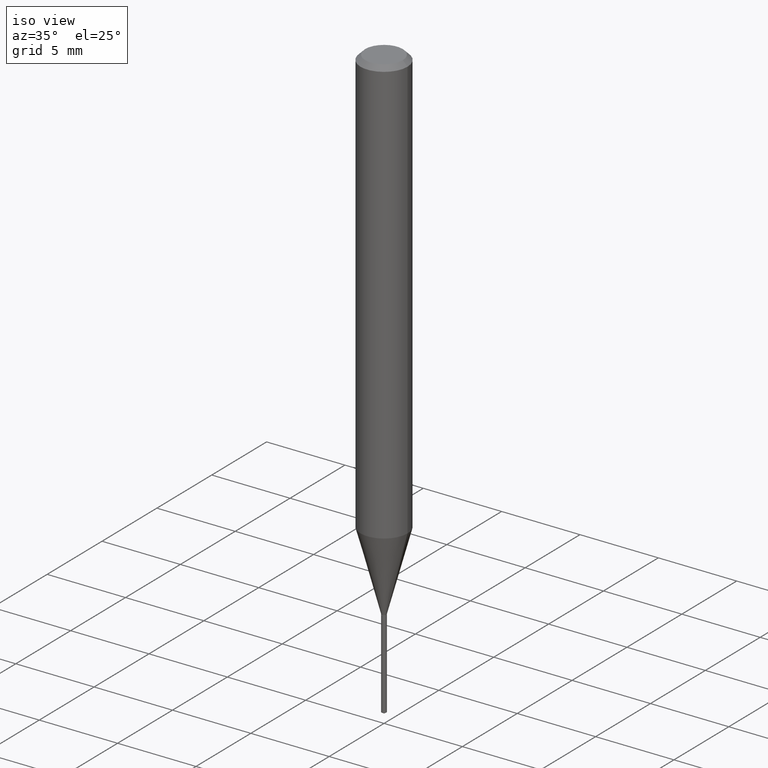
[diagram: clean part render]
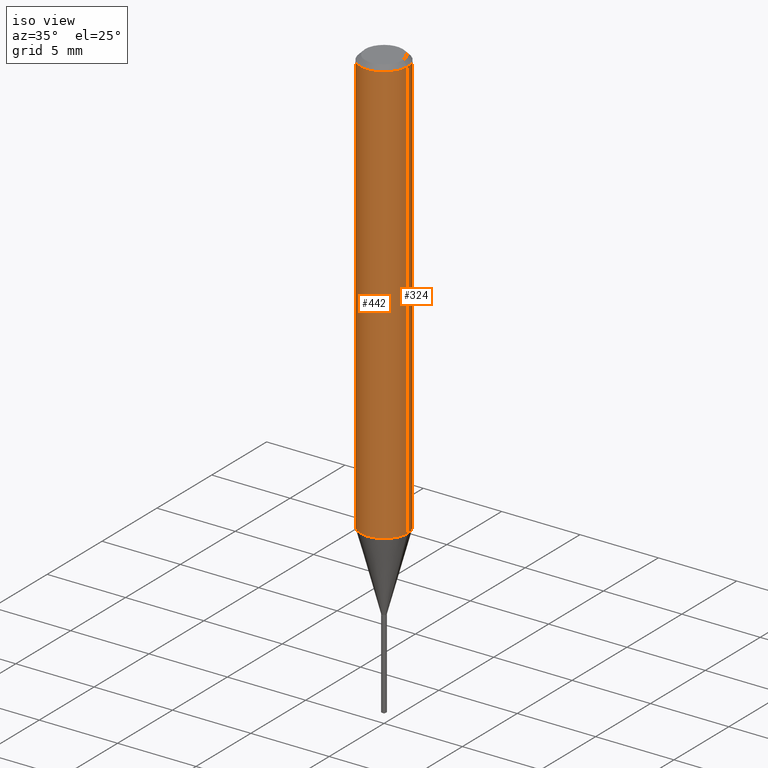
[diagram: same view with one multi-face feature highlighted, each face labeled with its STEP entity id]
A machine part, iso view. The highlighted faces form ONE feature: a constant-radius fillet chain: 2 tangent blend faces with common blend radius 1.4999 mm. The faces share edges in the B-rep.
Their STEP definitions:
[1] entity #324 (Cylinder):
#17 = EDGE_CURVE ( 'NONE', #148, #287, #239, .T. ) ;
#31 = CARTESIAN_POINT ( 'NONE',  ( 2.620421311750143284E-29, -3.741267149571589236E-15, -1.071541499577713941 ) ) ;
#44 = AXIS2_PLACEMENT_3D ( 'NONE', #386, #240, #390 ) ;
#57 = FACE_OUTER_BOUND ( 'NONE', #365, .T. ) ;
#63 = CARTESIAN_POINT ( 'NONE',  ( -0.05904999999999999832, -1.471675286625323003E-15, -0.01181000000000007044 ) ) ;
#84 = VECTOR ( 'NONE', #197, 39.37007874015748143 ) ;
#95 = CYLINDRICAL_SURFACE ( 'NONE', #401, 0.05905000000000006771 ) ;
#103 = ORIENTED_EDGE ( 'NONE', *, *, #471, .F. ) ;
#128 = CIRCLE ( 'NONE', #44, 0.05904999999999999832 ) ;
#139 = VERTEX_POINT ( 'NONE', #447 ) ;
#143 = ORIENTED_EDGE ( 'NONE', *, *, #17, .T. ) ;
#148 = VERTEX_POINT ( 'NONE', #227 ) ;
#180 = DIRECTION ( 'NONE',  ( 1.000000000000000000, -6.982962677686265133E-15, 0.000000000000000000 ) ) ;
#187 = VECTOR ( 'NONE', #486, 39.37007874015748143 ) ;
#197 = DIRECTION ( 'NONE',  ( -2.445468806185136877E-29, 3.491481338843145188E-15, 1.000000000000000000 ) ) ;
#227 = CARTESIAN_POINT ( 'NONE',  ( -0.05905000000000013710, -3.321691664105248954E-15, -1.071541499577713941 ) ) ;
#239 = LINE ( 'NONE', #340, #84 ) ;
#240 = DIRECTION ( 'NONE',  ( -2.445468806185136597E-29, 3.491481338843145583E-15, 1.000000000000000000 ) ) ;
#276 = AXIS2_PLACEMENT_3D ( 'NONE', #31, #286, #180 ) ;
#286 = DIRECTION ( 'NONE',  ( -2.445468806185136597E-29, 3.491481338843145583E-15, 1.000000000000000000 ) ) ;
#287 = VERTEX_POINT ( 'NONE', #63 ) ;
#288 = CARTESIAN_POINT ( 'NONE',  ( 0.05905000000000006771, -4.123439461173745257E-16, 2.879382386107503723E-30 ) ) ;
#301 = ORIENTED_EDGE ( 'NONE', *, *, #331, .F. ) ;
#313 = ORIENTED_EDGE ( 'NONE', *, *, #454, .T. ) ;
#324 = ADVANCED_FACE ( 'NONE', ( #57 ), #95, .T. ) ;
#325 = LINE ( 'NONE', #288, #187 ) ;
#331 = EDGE_CURVE ( 'NONE', #450, #287, #128, .T. ) ;
#340 = CARTESIAN_POINT ( 'NONE',  ( -0.05905000000000006771, 4.195754854663396409E-16, -2.904631170795525045E-30 ) ) ;
#347 = DIRECTION ( 'NONE',  ( -2.445468806185136597E-29, 3.491481338843145583E-15, 1.000000000000000000 ) ) ;
#365 = EDGE_LOOP ( 'NONE', ( #313, #143, #301, #103 ) ) ;
#367 = CARTESIAN_POINT ( 'NONE',  ( 0.05904999999999999832, -4.535783407291118600E-16, -0.01181000000000007044 ) ) ;
#386 = CARTESIAN_POINT ( 'NONE',  ( 2.888098660104663766E-31, -4.123439461173779647E-17, -0.01181000000000007044 ) ) ;
#390 = DIRECTION ( 'NONE',  ( 1.000000000000000000, -6.982962677686266711E-15, 0.000000000000000000 ) ) ;
#401 = AXIS2_PLACEMENT_3D ( 'NONE', #424, #347, #478 ) ;
#424 = CARTESIAN_POINT ( 'NONE',  ( 0.000000000000000000, 0.000000000000000000, 0.000000000000000000 ) ) ;
#447 = CARTESIAN_POINT ( 'NONE',  ( 0.05905000000000013710, -4.153611095688963367E-15, -1.071541499577713941 ) ) ;
#450 = VERTEX_POINT ( 'NONE', #367 ) ;
#454 = EDGE_CURVE ( 'NONE', #139, #148, #481, .T. ) ;
#471 = EDGE_CURVE ( 'NONE', #139, #450, #325, .T. ) ;
#478 = DIRECTION ( 'NONE',  ( 1.000000000000000000, -6.982962677686266711E-15, 4.876176775795936353E-29 ) ) ;
#481 = CIRCLE ( 'NONE', #276, 0.05905000000000013016 ) ;
#486 = DIRECTION ( 'NONE',  ( -2.445468806185136877E-29, 3.491481338843145188E-15, 1.000000000000000000 ) ) ;
[2] entity #442 (Cylinder):
#15 = DIRECTION ( 'NONE',  ( -2.445468806185136597E-29, 3.491481338843145583E-15, 1.000000000000000000 ) ) ;
#17 = EDGE_CURVE ( 'NONE', #148, #287, #239, .T. ) ;
#20 = CIRCLE ( 'NONE', #350, 0.05905000000000013016 ) ;
#24 = EDGE_CURVE ( 'NONE', #287, #450, #116, .T. ) ;
#36 = ORIENTED_EDGE ( 'NONE', *, *, #471, .T. ) ;
#63 = CARTESIAN_POINT ( 'NONE',  ( -0.05904999999999999832, -1.471675286625323003E-15, -0.01181000000000007044 ) ) ;
#79 = DIRECTION ( 'NONE',  ( -2.445468806185136597E-29, 3.491481338843145583E-15, 1.000000000000000000 ) ) ;
#84 = VECTOR ( 'NONE', #197, 39.37007874015748143 ) ;
#98 = CARTESIAN_POINT ( 'NONE',  ( 2.620421311750143284E-29, -3.741267149571589236E-15, -1.071541499577713941 ) ) ;
#108 = CARTESIAN_POINT ( 'NONE',  ( 0.000000000000000000, 0.000000000000000000, 0.000000000000000000 ) ) ;
#116 = CIRCLE ( 'NONE', #425, 0.05904999999999999832 ) ;
#139 = VERTEX_POINT ( 'NONE', #447 ) ;
#148 = VERTEX_POINT ( 'NONE', #227 ) ;
#187 = VECTOR ( 'NONE', #486, 39.37007874015748143 ) ;
#188 = FACE_OUTER_BOUND ( 'NONE', #448, .T. ) ;
#197 = DIRECTION ( 'NONE',  ( -2.445468806185136877E-29, 3.491481338843145188E-15, 1.000000000000000000 ) ) ;
#210 = DIRECTION ( 'NONE',  ( -2.445468806185136597E-29, 3.491481338843145583E-15, 1.000000000000000000 ) ) ;
#227 = CARTESIAN_POINT ( 'NONE',  ( -0.05905000000000013710, -3.321691664105248954E-15, -1.071541499577713941 ) ) ;
#239 = LINE ( 'NONE', #340, #84 ) ;
#270 = DIRECTION ( 'NONE',  ( 1.000000000000000000, -6.982962677686266711E-15, 0.000000000000000000 ) ) ;
#287 = VERTEX_POINT ( 'NONE', #63 ) ;
#288 = CARTESIAN_POINT ( 'NONE',  ( 0.05905000000000006771, -4.123439461173745257E-16, 2.879382386107503723E-30 ) ) ;
#325 = LINE ( 'NONE', #288, #187 ) ;
#340 = CARTESIAN_POINT ( 'NONE',  ( -0.05905000000000006771, 4.195754854663396409E-16, -2.904631170795525045E-30 ) ) ;
#344 = CARTESIAN_POINT ( 'NONE',  ( 2.888098660104663766E-31, -4.123439461173779647E-17, -0.01181000000000007044 ) ) ;
#348 = EDGE_CURVE ( 'NONE', #148, #139, #20, .T. ) ;
#350 = AXIS2_PLACEMENT_3D ( 'NONE', #98, #210, #355 ) ;
#355 = DIRECTION ( 'NONE',  ( 1.000000000000000000, -6.982962677686265133E-15, 0.000000000000000000 ) ) ;
#363 = ORIENTED_EDGE ( 'NONE', *, *, #17, .F. ) ;
#367 = CARTESIAN_POINT ( 'NONE',  ( 0.05904999999999999832, -4.535783407291118600E-16, -0.01181000000000007044 ) ) ;
#369 = DIRECTION ( 'NONE',  ( 1.000000000000000000, -6.982962677686266711E-15, 4.876176775795936353E-29 ) ) ;
#405 = CYLINDRICAL_SURFACE ( 'NONE', #419, 0.05905000000000006771 ) ;
#419 = AXIS2_PLACEMENT_3D ( 'NONE', #108, #79, #369 ) ;
#425 = AXIS2_PLACEMENT_3D ( 'NONE', #344, #15, #270 ) ;
#433 = ORIENTED_EDGE ( 'NONE', *, *, #348, .T. ) ;
#442 = ADVANCED_FACE ( 'NONE', ( #188 ), #405, .T. ) ;
#447 = CARTESIAN_POINT ( 'NONE',  ( 0.05905000000000013710, -4.153611095688963367E-15, -1.071541499577713941 ) ) ;
#448 = EDGE_LOOP ( 'NONE', ( #363, #433, #36, #469 ) ) ;
#450 = VERTEX_POINT ( 'NONE', #367 ) ;
#469 = ORIENTED_EDGE ( 'NONE', *, *, #24, .F. ) ;
#471 = EDGE_CURVE ( 'NONE', #139, #450, #325, .T. ) ;
#486 = DIRECTION ( 'NONE',  ( -2.445468806185136877E-29, 3.491481338843145188E-15, 1.000000000000000000 ) ) ;